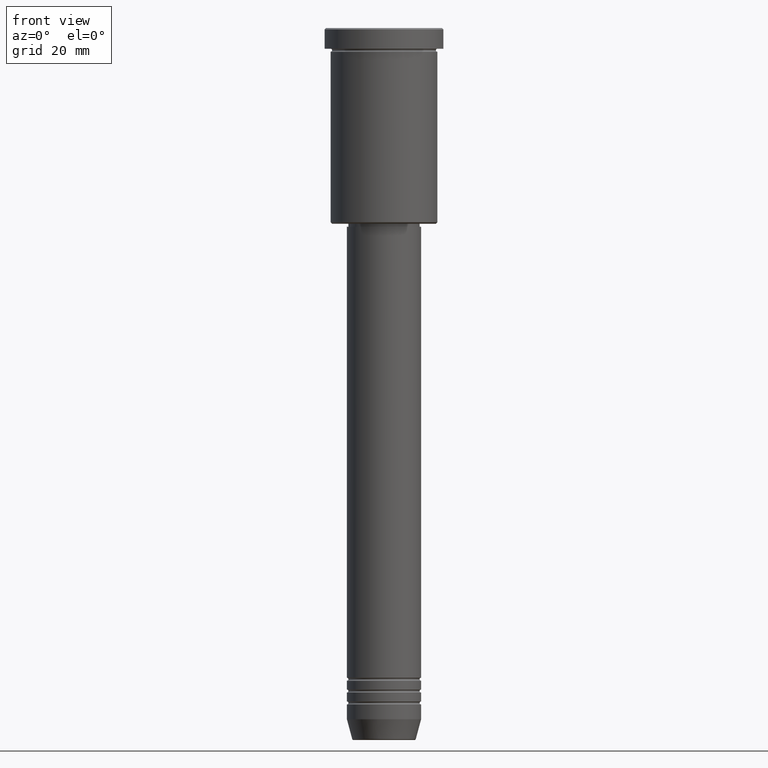
[diagram: clean part render]
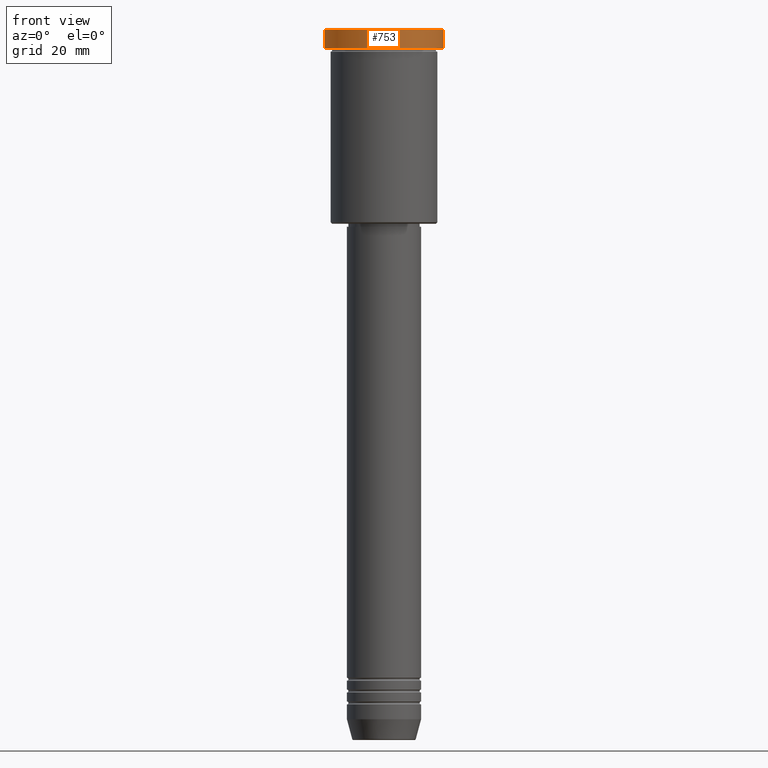
[diagram: same view with one face highlighted and labeled with its STEP entity id]
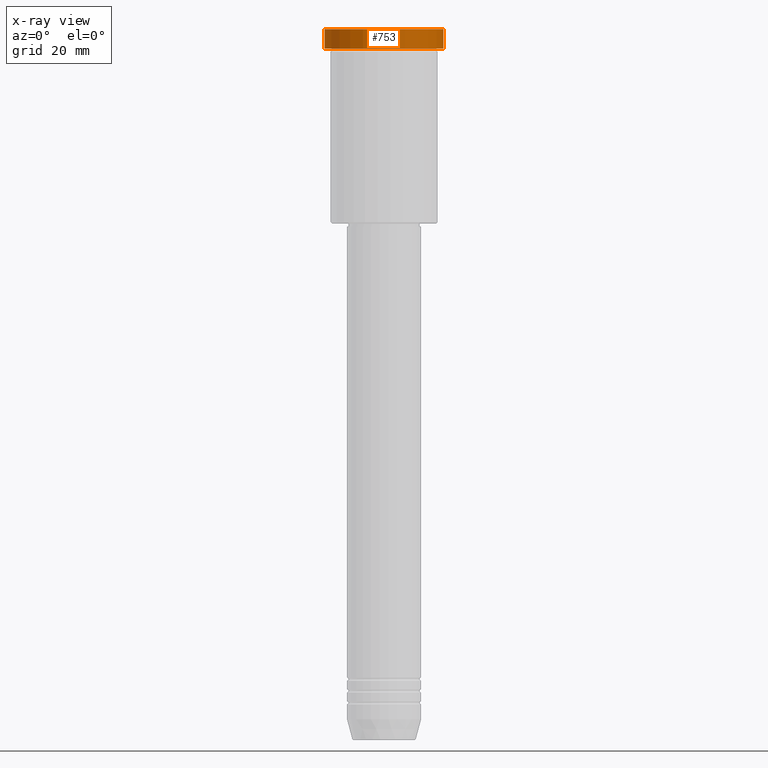
[diagram: x-ray of the same camera — body ghosted, the highlighted face saturated]
A machine part, front view. The second image highlights one B-rep face of the part: STEP entity #753.
The next image is the same camera in x-ray: the body ghosted, the highlighted face saturated — about 0% of this face is hidden behind the body in this view.
In plain terms, the highlighted cylindrical surface (partial cylindrical patch) has radius 20 mm, axis along (-0, -0, 1).
Its self-contained STEP definition (entity closure, byte-faithful):
#7 = VECTOR ( 'NONE', #69, 1000.000000000000000 ) ;
#69 = DIRECTION ( 'NONE',  ( -0.000000000000000000, -0.000000000000000000, 1.000000000000000000 ) ) ;
#78 = ORIENTED_EDGE ( 'NONE', *, *, #744, .T. ) ;
#83 = CYLINDRICAL_SURFACE ( 'NONE', #1074, 20.00000000000000000 ) ;
#102 = DIRECTION ( 'NONE',  ( -0.000000000000000000, -0.000000000000000000, 1.000000000000000000 ) ) ;
#152 = LINE ( 'NONE', #489, #432 ) ;
#168 = AXIS2_PLACEMENT_3D ( 'NONE', #400, #768, #667 ) ;
#172 = VERTEX_POINT ( 'NONE', #490 ) ;
#180 = VERTEX_POINT ( 'NONE', #390 ) ;
#213 = ORIENTED_EDGE ( 'NONE', *, *, #235, .T. ) ;
#235 = EDGE_CURVE ( 'NONE', #180, #355, #152, .T. ) ;
#355 = VERTEX_POINT ( 'NONE', #475 ) ;
#390 = CARTESIAN_POINT ( 'NONE',  ( 20.00000000000000000, 0.000000000000000000, -6.999999999999995559 ) ) ;
#393 = CIRCLE ( 'NONE', #168, 20.00000000000000000 ) ;
#397 = EDGE_CURVE ( 'NONE', #641, #180, #393, .T. ) ;
#400 = CARTESIAN_POINT ( 'NONE',  ( 0.000000000000000000, 0.000000000000000000, -6.999999999999995559 ) ) ;
#405 = DIRECTION ( 'NONE',  ( -0.000000000000000000, -0.000000000000000000, 1.000000000000000000 ) ) ;
#421 = ORIENTED_EDGE ( 'NONE', *, *, #397, .T. ) ;
#426 = EDGE_LOOP ( 'NONE', ( #1087, #421, #213, #78 ) ) ;
#432 = VECTOR ( 'NONE', #405, 1000.000000000000000 ) ;
#444 = DIRECTION ( 'NONE',  ( 1.000000000000000000, 0.000000000000000000, 0.000000000000000000 ) ) ;
#470 = CIRCLE ( 'NONE', #1095, 20.00000000000000000 ) ;
#475 = CARTESIAN_POINT ( 'NONE',  ( 20.00000000000000000, 0.000000000000000000, -0.4999999999999692468 ) ) ;
#489 = CARTESIAN_POINT ( 'NONE',  ( 20.00000000000000000, 0.000000000000000000, 0.000000000000000000 ) ) ;
#490 = CARTESIAN_POINT ( 'NONE',  ( -20.00000000000000000, 2.449293598294706513E-15, -0.4999999999999692468 ) ) ;
#492 = LINE ( 'NONE', #777, #7 ) ;
#511 = DIRECTION ( 'NONE',  ( 1.000000000000000000, 0.000000000000000000, 0.000000000000000000 ) ) ;
#613 = CARTESIAN_POINT ( 'NONE',  ( 0.000000000000000000, 0.000000000000000000, -0.4999999999999692468 ) ) ;
#618 = CARTESIAN_POINT ( 'NONE',  ( 0.000000000000000000, 0.000000000000000000, 0.000000000000000000 ) ) ;
#641 = VERTEX_POINT ( 'NONE', #963 ) ;
#656 = EDGE_CURVE ( 'NONE', #641, #172, #492, .T. ) ;
#667 = DIRECTION ( 'NONE',  ( 1.000000000000000000, 0.000000000000000000, 0.000000000000000000 ) ) ;
#744 = EDGE_CURVE ( 'NONE', #355, #172, #470, .T. ) ;
#753 = ADVANCED_FACE ( 'NONE', ( #903 ), #83, .T. ) ;
#768 = DIRECTION ( 'NONE',  ( -0.000000000000000000, -0.000000000000000000, 1.000000000000000000 ) ) ;
#777 = CARTESIAN_POINT ( 'NONE',  ( -20.00000000000000000, 2.449293598294706513E-15, 0.000000000000000000 ) ) ;
#903 = FACE_OUTER_BOUND ( 'NONE', #426, .T. ) ;
#963 = CARTESIAN_POINT ( 'NONE',  ( -20.00000000000000000, 2.449293598294706513E-15, -6.999999999999995559 ) ) ;
#1070 = DIRECTION ( 'NONE',  ( 0.000000000000000000, 0.000000000000000000, -1.000000000000000000 ) ) ;
#1074 = AXIS2_PLACEMENT_3D ( 'NONE', #618, #102, #444 ) ;
#1087 = ORIENTED_EDGE ( 'NONE', *, *, #656, .F. ) ;
#1095 = AXIS2_PLACEMENT_3D ( 'NONE', #613, #1070, #511 ) ;